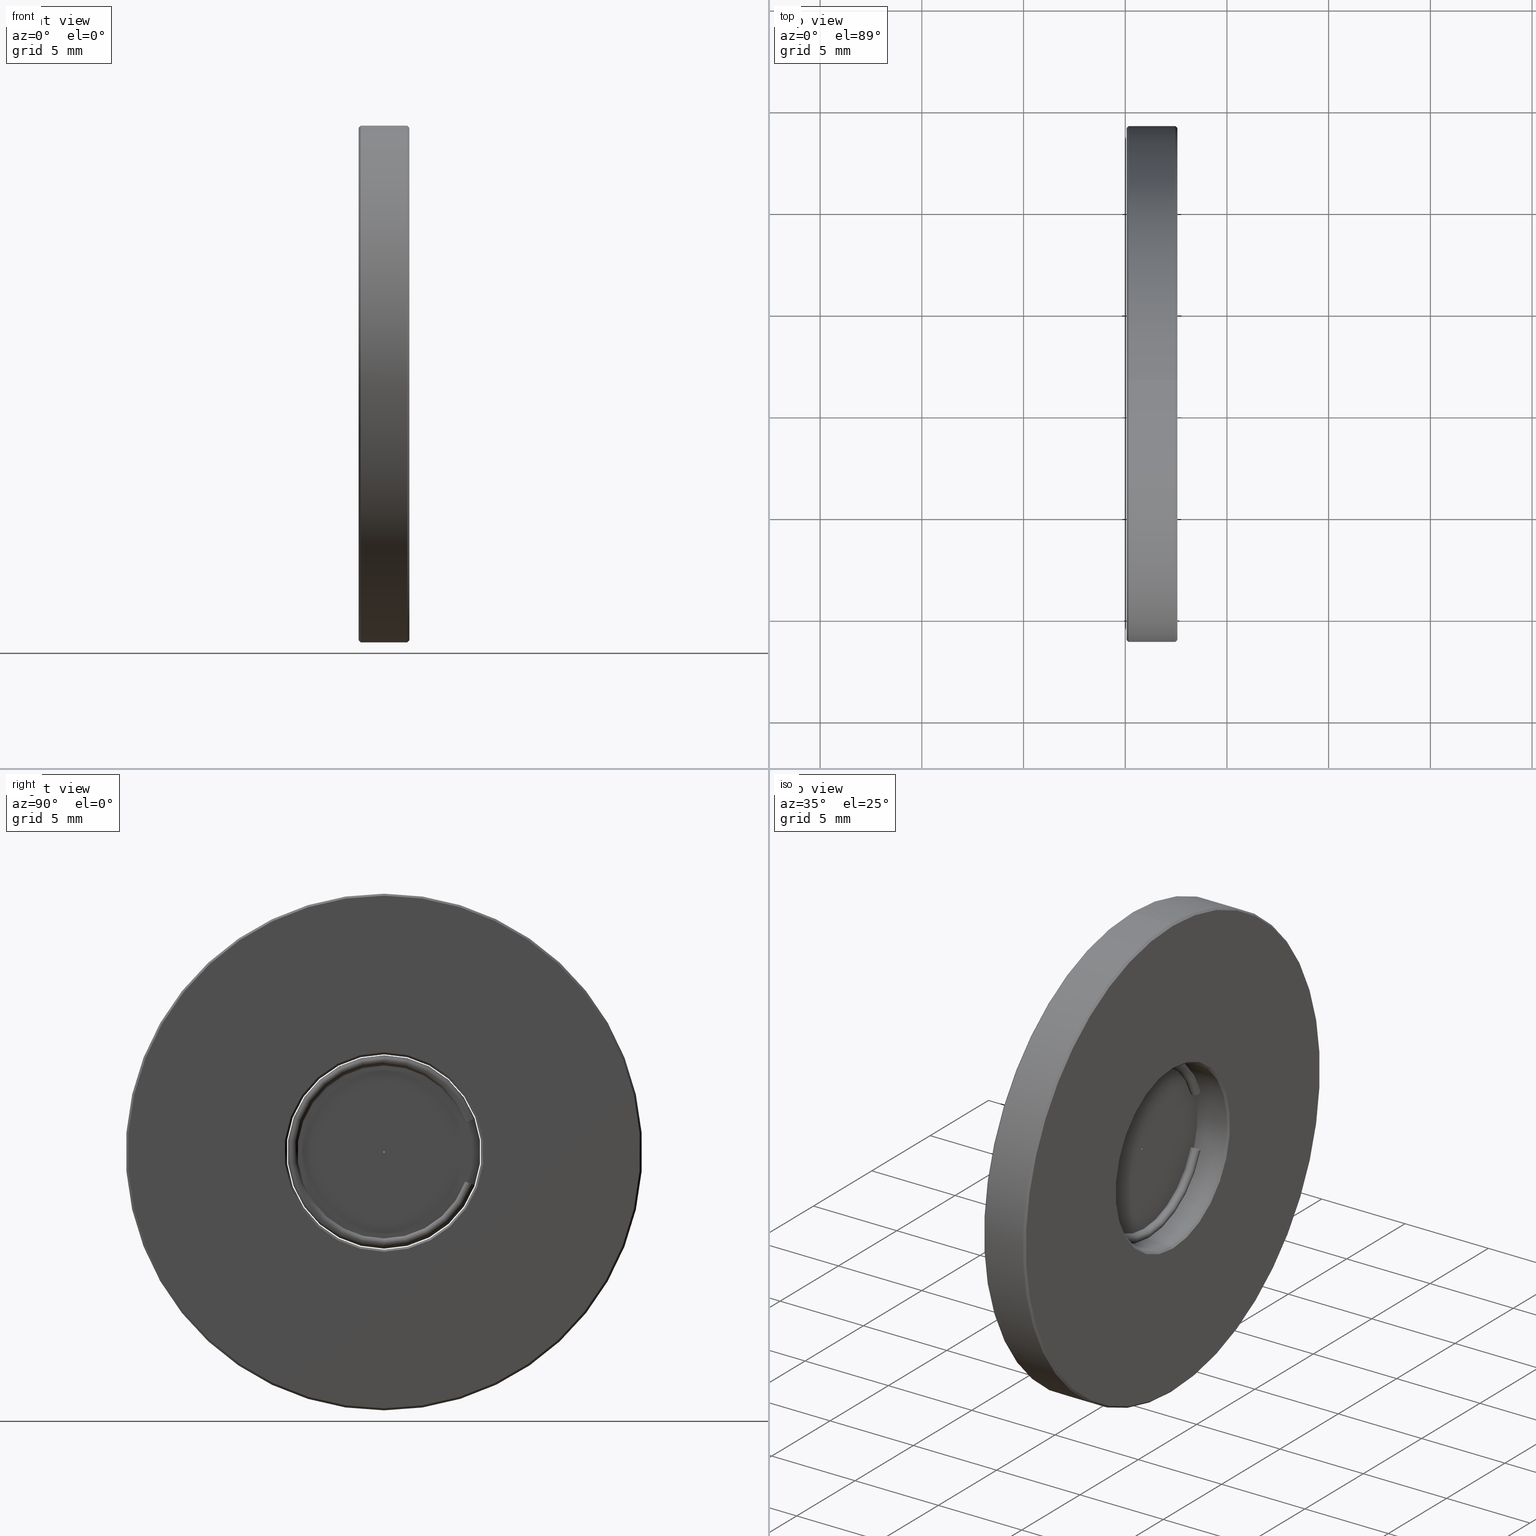
[diagram: canonical four-view strip — front | top / right | iso, engineering-drawing reading convention]
A machine part, canonical four-view strip (front | top / right | iso — engineering-drawing reading convention). The complete STEP part file that produces these views, byte-faithful:
ISO-10303-21;
HEADER;
FILE_DESCRIPTION (( 'STEP AP203' ),
    '1' );
FILE_NAME ('1.5.3.28_ZXO-1.0-50_�������50um��ֱ��25.4��1.0Ӣ�磩.STEP',
    '2021-07-27T01:08:43',
    ( 'China' ),
    ( 'Home' ),
    'SwSTEP 2.0',
    'SolidWorks 2018',
    '' );
FILE_SCHEMA (( 'CONFIG_CONTROL_DESIGN' ));
ENDSEC;

DATA;
#1 = DIRECTION ( 'NONE',  ( 0.0000000000000000000, 0.0000000000000000000, -1.000000000000000000 ) ) ;
#2 = CARTESIAN_POINT ( 'NONE',  ( -4.934863851253203926, 1.436758841085141070, 25.39999999999999858 ) ) ;
#3 = APPROVAL_DATE_TIME ( #503, #4 ) ;
#4 = APPROVAL ( #173, 'δָ��' ) ;
#5 = CARTESIAN_POINT ( 'NONE',  ( -4.034863851253239986, 1.436758841085141514, 25.39999999999998437 ) ) ;
#6 = FACE_OUTER_BOUND ( 'NONE', #369, .T. ) ;
#7 = ORIENTED_EDGE ( 'NONE', *, *, #555, .T. ) ;
#8 = EDGE_LOOP ( 'NONE', ( #38, #417, #614, #415 ) ) ;
#9 = AXIS2_PLACEMENT_3D ( 'NONE', #203, #199, #515 ) ;
#10 = CARTESIAN_POINT ( 'NONE',  ( -4.334863851253203393, 1.436758841085141070, 21.69999999999999574 ) ) ;
#11 = PLANE ( 'NONE',  #191 ) ;
#12 = CARTESIAN_POINT ( 'NONE',  ( -4.334863851253203393, 1.436758841085141070, 25.39999999999999858 ) ) ;
#13 = LINE ( 'NONE', #262, #566 ) ;
#14 = FACE_OUTER_BOUND ( 'NONE', #208, .T. ) ;
#15 = CARTESIAN_POINT ( 'NONE',  ( -2.434863851253203482, 1.436758841085141070, 25.39999999999999858 ) ) ;
#16 = CC_DESIGN_APPROVAL ( #730, ( #109 ) ) ;
#17 = ORIENTED_EDGE ( 'NONE', *, *, #410, .T. ) ;
#18 = CARTESIAN_POINT ( 'NONE',  ( -4.034863851253239986, 1.436758841085141514, 25.39999999999998437 ) ) ;
#19 = ORIENTED_EDGE ( 'NONE', *, *, #225, .F. ) ;
#20 = ORIENTED_EDGE ( 'NONE', *, *, #496, .F. ) ;
#21 = CARTESIAN_POINT ( 'NONE',  ( -4.934863851253203926, 1.436758841085141070, 25.39999999999999858 ) ) ;
#22 = COORDINATED_UNIVERSAL_TIME_OFFSET ( 8, 0, .AHEAD. ) ;
#23 = AXIS2_PLACEMENT_3D ( 'NONE', #541, #722, #424 ) ;
#24 = DIRECTION ( 'NONE',  ( 1.000000000000000000, 0.0000000000000000000, 0.0000000000000000000 ) ) ;
#25 = FACE_OUTER_BOUND ( 'NONE', #184, .T. ) ;
#26 = EDGE_LOOP ( 'NONE', ( #312, #475, #617, #368 ) ) ;
#27 = ADVANCED_FACE ( 'NONE', ( #671 ), #338, .F. ) ;
#28 = VERTEX_POINT ( 'NONE', #10 ) ;
#29 = DIRECTION ( 'NONE',  ( 1.000000000000000000, 0.0000000000000000000, 0.0000000000000000000 ) ) ;
#30 = CARTESIAN_POINT ( 'NONE',  ( -4.934863851253203926, 1.436758841085141070, 25.39999999999999858 ) ) ;
#31 = AXIS2_PLACEMENT_3D ( 'NONE', #18, #575, #694 ) ;
#32 = ADVANCED_FACE ( 'NONE', ( #589 ), #521, .T. ) ;
#33 = LOCAL_TIME ( 9, 8, 43.00000000000000000, #196 ) ;
#34 = SHAPE_DEFINITION_REPRESENTATION ( #399, #768 ) ;
#35 = CIRCLE ( 'NONE', #755, 0.2500000000000002220 ) ;
#36 = CARTESIAN_POINT ( 'NONE',  ( -4.934863851253203926, 1.436758841085141070, 29.19999999999999929 ) ) ;
#37 = EDGE_CURVE ( 'NONE', #582, #106, #385, .T. ) ;
#38 = ORIENTED_EDGE ( 'NONE', *, *, #487, .F. ) ;
#39 = ORIENTED_EDGE ( 'NONE', *, *, #246, .T. ) ;
#40 = DIRECTION ( 'NONE',  ( 1.000000000000000000, 0.0000000000000000000, 0.0000000000000000000 ) ) ;
#41 = DIRECTION ( 'NONE',  ( 0.0000000000000000000, 0.0000000000000000000, -1.000000000000000000 ) ) ;
#42 = DIRECTION ( 'NONE',  ( 1.000000000000000000, -2.997602166487921476E-15, -1.332267629309052594E-15 ) ) ;
#43 = APPROVAL_DATE_TIME ( #651, #367 ) ;
#44 = CARTESIAN_POINT ( 'NONE',  ( -4.034863851253239986, 1.436758841085141514, 25.39999999999998437 ) ) ;
#45 = LINE ( 'NONE', #603, #758 ) ;
#46 = VERTEX_POINT ( 'NONE', #618 ) ;
#47 = EDGE_LOOP ( 'NONE', ( #643, #201, #644, #261 ) ) ;
#48 = APPROVAL_ROLE ( '' ) ;
#49 = CC_DESIGN_PERSON_AND_ORGANIZATION_ASSIGNMENT ( #344, #422, ( #748 ) ) ;
#50 = CARTESIAN_POINT ( 'NONE',  ( -2.434863851253203482, 1.436758841085141070, 38.09999999999999432 ) ) ;
#51 = DIRECTION ( 'NONE',  ( 0.0000000000000000000, 0.0000000000000000000, -1.000000000000000000 ) ) ;
#52 = AXIS2_PLACEMENT_3D ( 'NONE', #214, #652, #642 ) ;
#53 = APPROVAL_ROLE ( '' ) ;
#54 = LINE ( 'NONE', #306, #117 ) ;
#55 = APPROVAL_ROLE ( '' ) ;
#56 = ORIENTED_EDGE ( 'NONE', *, *, #745, .T. ) ;
#57 = PLANE ( 'NONE',  #391 ) ;
#58 = ORIENTED_EDGE ( 'NONE', *, *, #769, .F. ) ;
#59 = ORIENTED_EDGE ( 'NONE', *, *, #333, .F. ) ;
#60 = DIRECTION ( 'NONE',  ( 1.000000000000000000, 0.0000000000000000000, 0.0000000000000000000 ) ) ;
#61 = CARTESIAN_POINT ( 'NONE',  ( -4.934863851253203926, 1.436758841085141514, 29.10000000000000142 ) ) ;
#62 = AXIS2_PLACEMENT_3D ( 'NONE', #426, #612, #125 ) ;
#63 = CALENDAR_DATE ( 2021, 27, 7 ) ;
#64 = DIRECTION ( 'NONE',  ( 1.000000000000000000, -0.0000000000000000000, -0.0000000000000000000 ) ) ;
#65 = FACE_BOUND ( 'NONE', #418, .T. ) ;
#66 = EDGE_LOOP ( 'NONE', ( #561, #792, #259, #793 ) ) ;
#67 = DIRECTION ( 'NONE',  ( 1.000000000000000000, 0.0000000000000000000, 0.0000000000000000000 ) ) ;
#68 = ORIENTED_EDGE ( 'NONE', *, *, #624, .T. ) ;
#69 = AXIS2_PLACEMENT_3D ( 'NONE', #786, #474, #51 ) ;
#70 = DIRECTION ( 'NONE',  ( 3.061276722312011406E-15, 1.000000000000000000, 0.0000000000000000000 ) ) ;
#71 = LOCAL_TIME ( 9, 8, 43.00000000000000000, #151 ) ;
#72 = CIRCLE ( 'NONE', #774, 12.59999999999999787 ) ;
#73 = AXIS2_PLACEMENT_3D ( 'NONE', #646, #413, #404 ) ;
#74 = DIRECTION ( 'NONE',  ( -1.332267629506340790E-15, -6.581527172670668233E-11, -1.000000000000000000 ) ) ;
#75 = OPEN_SHELL ( 'NONE', ( #157, #704, #219, #88, #471, #781, #536, #529 ) ) ;
#76 = CARTESIAN_POINT ( 'NONE',  ( -4.834863851253204281, 1.436758841085141070, 12.69999999999999929 ) ) ;
#77 = ORIENTED_EDGE ( 'NONE', *, *, #420, .F. ) ;
#78 = AXIS2_PLACEMENT_3D ( 'NONE', #148, #388, #695 ) ;
#79 = CARTESIAN_POINT ( 'NONE',  ( -18.51131405003491537, 1.436758841085141070, 25.39999999999999858 ) ) ;
#80 = DIRECTION ( 'NONE',  ( 2.997602166400237614E-15, 1.000000000000000000, -6.581539236536173561E-11 ) ) ;
#81 = DIRECTION ( 'NONE',  ( 0.0000000000000000000, 0.0000000000000000000, -1.000000000000000000 ) ) ;
#82 = CIRCLE ( 'NONE', #679, 3.700000000000001954 ) ;
#83 = VERTEX_POINT ( 'NONE', #330 ) ;
#84 = DIRECTION ( 'NONE',  ( 0.0000000000000000000, 0.0000000000000000000, 1.000000000000000000 ) ) ;
#85 = ORIENTED_EDGE ( 'NONE', *, *, #530, .T. ) ;
#86 = CARTESIAN_POINT ( 'NONE',  ( -2.434863851253203482, 1.436758841085141070, 25.39999999999999858 ) ) ;
#87 = CC_DESIGN_DATE_AND_TIME_ASSIGNMENT ( #659, #231, ( #748 ) ) ;
#88 = ADVANCED_FACE ( 'NONE', ( #509 ), #723, .T. ) ;
#89 = CARTESIAN_POINT ( 'NONE',  ( -4.834863851253204281, 1.436758841085142402, 38.09999999999999432 ) ) ;
#90 = DIRECTION ( 'NONE',  ( 1.000000000000000000, -0.0000000000000000000, -0.0000000000000000000 ) ) ;
#91 = CARTESIAN_POINT ( 'NONE',  ( -4.334863851253204281, 1.436758841085140181, 30.14999999999999858 ) ) ;
#92 = EDGE_CURVE ( 'NONE', #551, #609, #766, .T. ) ;
#93 = VECTOR ( 'NONE', #697, 1000.000000000000000 ) ;
#94 = ORIENTED_EDGE ( 'NONE', *, *, #456, .T. ) ;
#95 = CIRCLE ( 'NONE', #69, 4.899999999999997691 ) ;
#96 = ORIENTED_EDGE ( 'NONE', *, *, #459, .F. ) ;
#97 = DIRECTION ( 'NONE',  ( 2.305737067885825171E-15, -0.3420201433875065256, -0.9396926207634013206 ) ) ;
#98 = DIRECTION ( 'NONE',  ( 2.921639538487253472E-15, 1.000000000000000000, 0.0000000000000000000 ) ) ;
#99 = CARTESIAN_POINT ( 'NONE',  ( -4.834863851253204281, 1.436758841085141070, 25.39999999999999858 ) ) ;
#100 = FACE_BOUND ( 'NONE', #663, .T. ) ;
#101 = DIRECTION ( 'NONE',  ( -1.000000000000000000, -0.0000000000000000000, -0.0000000000000000000 ) ) ;
#102 = AXIS2_PLACEMENT_3D ( 'NONE', #12, #380, #374 ) ;
#103 = EDGE_LOOP ( 'NONE', ( #309, #512, #790, #59 ) ) ;
#104 = CARTESIAN_POINT ( 'NONE',  ( -4.834863851253204281, 1.436758841085141070, 25.39999999999999858 ) ) ;
#105 = VERTEX_POINT ( 'NONE', #568 ) ;
#106 = VERTEX_POINT ( 'NONE', #676 ) ;
#107 = DIRECTION ( 'NONE',  ( 0.0000000000000000000, 0.0000000000000000000, 1.000000000000000000 ) ) ;
#108 = AXIS2_PLACEMENT_3D ( 'NONE', #434, #192, #557 ) ;
#109 = SECURITY_CLASSIFICATION ( '', '', #486 ) ;
#110 = EDGE_CURVE ( 'NONE', #635, #408, #190, .T. ) ;
#111 = DIRECTION ( 'NONE',  ( 1.000000000000000000, 0.0000000000000000000, 0.0000000000000000000 ) ) ;
#112 = ORIENTED_EDGE ( 'NONE', *, *, #305, .F. ) ;
#113 = AXIS2_PLACEMENT_3D ( 'NONE', #79, #263, #81 ) ;
#114 = ORIENTED_EDGE ( 'NONE', *, *, #624, .F. ) ;
#115 = CARTESIAN_POINT ( 'NONE',  ( -4.334863851253204281, 1.436758841085140181, 25.39999999999999858 ) ) ;
#116 = AXIS2_PLACEMENT_3D ( 'NONE', #516, #761, #334 ) ;
#117 = VECTOR ( 'NONE', #731, 1000.000000000000000 ) ;
#118 = CIRCLE ( 'NONE', #217, 3.700000000000001954 ) ;
#119 = CARTESIAN_POINT ( 'NONE',  ( -4.834863851253204281, 1.436758841085141070, 25.39999999999999858 ) ) ;
#120 = ORIENTED_EDGE ( 'NONE', *, *, #138, .F. ) ;
#121 = FACE_OUTER_BOUND ( 'NONE', #443, .T. ) ;
#122 = EDGE_LOOP ( 'NONE', ( #452, #464, #522, #331 ) ) ;
#123 = ORIENTED_EDGE ( 'NONE', *, *, #416, .F. ) ;
#124 = CC_DESIGN_SECURITY_CLASSIFICATION ( #109, ( #128 ) ) ;
#125 = DIRECTION ( 'NONE',  ( 0.0000000000000000000, 0.0000000000000000000, 1.000000000000000000 ) ) ;
#126 = EDGE_CURVE ( 'NONE', #156, #159, #35, .T. ) ;
#127 = CARTESIAN_POINT ( 'NONE',  ( -4.034863851253261302, 5.665375634520459336, 23.86090935475617059 ) ) ;
#128 = PRODUCT_DEFINITION_FORMATION_WITH_SPECIFIED_SOURCE ( '�κ�', '', #628, .NOT_KNOWN. ) ;
#129 = DIRECTION ( 'NONE',  ( 0.7071067811865505703, 8.659560562354895880E-17, 0.7071067811865444641 ) ) ;
#130 = CIRCLE ( 'NONE', #406, 0.2500000000000002220 ) ;
#131 = CIRCLE ( 'NONE', #606, 4.750000000000000888 ) ;
#132 = ORIENTED_EDGE ( 'NONE', *, *, #158, .T. ) ;
#133 = DIRECTION ( 'NONE',  ( 0.0000000000000000000, 0.0000000000000000000, -1.000000000000000000 ) ) ;
#134 = EDGE_LOOP ( 'NONE', ( #546, #441 ) ) ;
#135 = AXIS2_PLACEMENT_3D ( 'NONE', #622, #254, #1 ) ;
#136 = PERSON ( 'δָ��', 'δָ��', 'δָ��', ('δָ��'), ('δָ��'), ('δָ��') ) ;
#137 = DIRECTION ( 'NONE',  ( 1.000000000000000000, 0.0000000000000000000, 0.0000000000000000000 ) ) ;
#138 = EDGE_CURVE ( 'NONE', #83, #105, #233, .T. ) ;
#139 = CARTESIAN_POINT ( 'NONE',  ( -4.934863851253203926, 1.436758841085141070, 25.39999999999999858 ) ) ;
#140 = CARTESIAN_POINT ( 'NONE',  ( -2.434863851253203482, 1.436758841085141070, 20.50000000000000000 ) ) ;
#141 = CYLINDRICAL_SURFACE ( 'NONE', #187, 3.700000000000001954 ) ;
#142 = CONICAL_SURFACE ( 'NONE', #684, 12.59999999999999964, 0.7853981633974569387 ) ;
#143 = CARTESIAN_POINT ( 'NONE',  ( -4.034863851253261302, 5.665375634723053722, 26.93909064468709857 ) ) ;
#144 = EDGE_LOOP ( 'NONE', ( #691, #120, #68, #147 ) ) ;
#145 = VECTOR ( 'NONE', #483, 1000.000000000000000 ) ;
#146 = EDGE_LOOP ( 'NONE', ( #186, #500 ) ) ;
#147 = ORIENTED_EDGE ( 'NONE', *, *, #430, .T. ) ;
#148 = CARTESIAN_POINT ( 'NONE',  ( -2.534863851253202682, 1.436758841085141070, 25.39999999999999858 ) ) ;
#149 = DIRECTION ( 'NONE',  ( -1.000000000000000000, -0.0000000000000000000, -0.0000000000000000000 ) ) ;
#150 = ADVANCED_FACE ( 'NONE', ( #699 ), #375, .T. ) ;
#151 = COORDINATED_UNIVERSAL_TIME_OFFSET ( 8, 0, .AHEAD. ) ;
#152 = EDGE_CURVE ( 'NONE', #403, #524, #425, .T. ) ;
#153 = CIRCLE ( 'NONE', #519, 12.60000000000000142 ) ;
#154 = CARTESIAN_POINT ( 'NONE',  ( -4.034863851253239986, 1.436758841085141514, 25.39999999999998437 ) ) ;
#155 = TOROIDAL_SURFACE ( 'NONE', #285, 4.500000000000001776, 0.2499999999999994726 ) ;
#156 = VERTEX_POINT ( 'NONE', #634 ) ;
#157 = ADVANCED_FACE ( 'NONE', ( #392 ), #560, .T. ) ;
#158 = EDGE_CURVE ( 'NONE', #674, #681, #357, .T. ) ;
#159 = VERTEX_POINT ( 'NONE', #690 ) ;
#160 = AXIS2_PLACEMENT_3D ( 'NONE', #648, #101, #397 ) ;
#161 = DIRECTION ( 'NONE',  ( 2.764278068315865563E-15, -0.9396926207634013206, 0.3420201433875065256 ) ) ;
#162 = DIRECTION ( 'NONE',  ( 0.0000000000000000000, 0.0000000000000000000, 1.000000000000000000 ) ) ;
#163 = CIRCLE ( 'NONE', #73, 4.750000000000000888 ) ;
#164 =( NAMED_UNIT ( * ) SI_UNIT ( $, .STERADIAN. ) SOLID_ANGLE_UNIT ( ) );
#165 = FACE_OUTER_BOUND ( 'NONE', #8, .T. ) ;
#166 = AXIS2_PLACEMENT_3D ( 'NONE', #44, #421, #544 ) ;
#167 = DIRECTION ( 'NONE',  ( -1.000000000000000000, 0.0000000000000000000, 0.0000000000000000000 ) ) ;
#168 = ADVANCED_FACE ( 'NONE', ( #732 ), #712, .F. ) ;
#169 = LINE ( 'NONE', #791, #307 ) ;
#170 = VERTEX_POINT ( 'NONE', #204 ) ;
#171 = CARTESIAN_POINT ( 'NONE',  ( -4.834863851253201616, 1.436758841085141070, 21.69999999999999574 ) ) ;
#172 = ADVANCED_FACE ( 'NONE', ( #65, #25 ), #11, .T. ) ;
#173 = APPROVAL_STATUS ( 'not_yet_approved' ) ;
#174 = COORDINATED_UNIVERSAL_TIME_OFFSET ( 8, 0, .AHEAD. ) ;
#175 = LINE ( 'NONE', #294, #669 ) ;
#176 = FACE_OUTER_BOUND ( 'NONE', #250, .T. ) ;
#177 = DIRECTION ( 'NONE',  ( 2.921639538487253472E-15, 1.000000000000000000, 0.0000000000000000000 ) ) ;
#178 = CARTESIAN_POINT ( 'NONE',  ( -4.034863851253239986, 1.436758841085141514, 25.39999999999998437 ) ) ;
#179 = EDGE_CURVE ( 'NONE', #494, #376, #221, .T. ) ;
#180 = APPROVAL_PERSON_ORGANIZATION ( #685, #730, #48 ) ;
#181 = CYLINDRICAL_SURFACE ( 'NONE', #113, 4.799999999999998934 ) ;
#182 = DIRECTION ( 'NONE',  ( 0.0000000000000000000, 0.0000000000000000000, 1.000000000000000000 ) ) ;
#183 = ORIENTED_EDGE ( 'NONE', *, *, #638, .T. ) ;
#184 = EDGE_LOOP ( 'NONE', ( #727, #495 ) ) ;
#185 = CARTESIAN_POINT ( 'NONE',  ( -4.034863851253234657, 1.436758840788972647, 20.89999999999998437 ) ) ;
#186 = ORIENTED_EDGE ( 'NONE', *, *, #583, .F. ) ;
#187 = AXIS2_PLACEMENT_3D ( 'NONE', #245, #64, #436 ) ;
#188 = CIRCLE ( 'NONE', #526, 0.2500000000000002220 ) ;
#189 = CARTESIAN_POINT ( 'NONE',  ( -4.334863851253204281, 1.436758841085139515, 20.64999999999999858 ) ) ;
#190 = CIRCLE ( 'NONE', #257, 0.2500000000000000000 ) ;
#191 = AXIS2_PLACEMENT_3D ( 'NONE', #447, #454, #445 ) ;
#192 = DIRECTION ( 'NONE',  ( -1.000000000000000000, 0.0000000000000000000, 0.0000000000000000000 ) ) ;
#193 = VERTEX_POINT ( 'NONE', #76 ) ;
#194 = EDGE_CURVE ( 'NONE', #289, #572, #319, .T. ) ;
#195 = CARTESIAN_POINT ( 'NONE',  ( -2.434863851253203482, 1.436758841085142402, 12.79999999999999716 ) ) ;
#196 = COORDINATED_UNIVERSAL_TIME_OFFSET ( 8, 0, .AHEAD. ) ;
#197 = DIRECTION ( 'NONE',  ( 3.469446951953611033E-15, -0.9396926207634005435, 0.3420201433875083574 ) ) ;
#198 = FACE_OUTER_BOUND ( 'NONE', #616, .T. ) ;
#199 = DIRECTION ( 'NONE',  ( 1.000000000000000000, -2.997602166487921476E-15, -1.332267629309052594E-15 ) ) ;
#200 = VERTEX_POINT ( 'NONE', #140 ) ;
#201 = ORIENTED_EDGE ( 'NONE', *, *, #677, .F. ) ;
#202 = AXIS2_PLACEMENT_3D ( 'NONE', #286, #778, #41 ) ;
#203 = CARTESIAN_POINT ( 'NONE',  ( -4.034863851253239986, 1.436758841085141514, 25.39999999999998437 ) ) ;
#204 = CARTESIAN_POINT ( 'NONE',  ( -4.334863851253203393, 1.436758841085141070, 20.60000000000000142 ) ) ;
#205 = DIRECTION ( 'NONE',  ( 0.0000000000000000000, 0.0000000000000000000, 1.000000000000000000 ) ) ;
#206 = PERSON_AND_ORGANIZATION ( #136, #364 ) ;
#207 = DIRECTION ( 'NONE',  ( 0.0000000000000000000, 0.0000000000000000000, 1.000000000000000000 ) ) ;
#208 = EDGE_LOOP ( 'NONE', ( #744, #535, #234, #435 ) ) ;
#209 = ADVANCED_FACE ( 'NONE', ( #543 ), #298, .F. ) ;
#210 = EDGE_CURVE ( 'NONE', #359, #200, #499, .T. ) ;
#211 = VERTEX_POINT ( 'NONE', #647 ) ;
#212 = ORIENTED_EDGE ( 'NONE', *, *, #585, .F. ) ;
#213 = AXIS2_PLACEMENT_3D ( 'NONE', #315, #746, #629 ) ;
#214 = CARTESIAN_POINT ( 'NONE',  ( -4.284863851253205347, 1.436758841085140181, 25.39999999999999858 ) ) ;
#215 = CARTESIAN_POINT ( 'NONE',  ( -4.034863851253246203, 1.436758840772518919, 20.64999999999998437 ) ) ;
#216 = CARTESIAN_POINT ( 'NONE',  ( -4.834863851253201616, 1.436758841085141070, 25.39999999999999858 ) ) ;
#217 = AXIS2_PLACEMENT_3D ( 'NONE', #549, #358, #547 ) ;
#218 = VECTOR ( 'NONE', #556, 1000.000000000000000 ) ;
#219 = ADVANCED_FACE ( 'NONE', ( #176 ), #155, .T. ) ;
#220 = CC_DESIGN_PERSON_AND_ORGANIZATION_ASSIGNMENT ( #788, #610, ( #109 ) ) ;
#221 = CIRCLE ( 'NONE', #620, 12.69999999999999929 ) ;
#222 = DIRECTION ( 'NONE',  ( -1.000000000000000000, -0.0000000000000000000, -0.0000000000000000000 ) ) ;
#223 = ORIENTED_EDGE ( 'NONE', *, *, #429, .F. ) ;
#224 = LINE ( 'NONE', #50, #145 ) ;
#225 = EDGE_CURVE ( 'NONE', #348, #726, #569, .T. ) ;
#226 = ORIENTED_EDGE ( 'NONE', *, *, #37, .T. ) ;
#227 = DIRECTION ( 'NONE',  ( 1.000000000000000000, -0.0000000000000000000, -0.0000000000000000000 ) ) ;
#228 = DIRECTION ( 'NONE',  ( 1.000000000000000000, -0.0000000000000000000, -0.0000000000000000000 ) ) ;
#229 = DIRECTION ( 'NONE',  ( 1.000000000000000000, 0.0000000000000000000, 0.0000000000000000000 ) ) ;
#230 = ADVANCED_FACE ( 'NONE', ( #625 ), #779, .T. ) ;
#231 = DATE_TIME_ROLE ( 'creation_date' ) ;
#232 = AXIS2_PLACEMENT_3D ( 'NONE', #251, #508, #74 ) ;
#233 = CIRCLE ( 'NONE', #395, 0.2500000000000002220 ) ;
#234 = ORIENTED_EDGE ( 'NONE', *, *, #472, .T. ) ;
#235 = APPLICATION_CONTEXT ( 'configuration controlled 3d designs of mechanical parts and assemblies' ) ;
#236 = OPEN_SHELL ( 'NONE', ( #463 ) ) ;
#237 = DESIGN_CONTEXT ( 'detailed design', #235, 'design' ) ;
#238 = DIRECTION ( 'NONE',  ( 2.997602166400237614E-15, 1.000000000000000000, -6.581539236536173561E-11 ) ) ;
#239 = CIRCLE ( 'NONE', #784, 3.800000000000001155 ) ;
#240 = LINE ( 'NONE', #363, #327 ) ;
#241 = AXIS2_PLACEMENT_3D ( 'NONE', #282, #97, #161 ) ;
#242 = VERTEX_POINT ( 'NONE', #270 ) ;
#243 = CARTESIAN_POINT ( 'NONE',  ( -4.034863851253239986, 1.436758841085141514, 25.39999999999998437 ) ) ;
#244 = EDGE_LOOP ( 'NONE', ( #96, #545, #759, #371 ) ) ;
#245 = CARTESIAN_POINT ( 'NONE',  ( -4.934863851253203926, 1.436758841085141070, 25.39999999999999858 ) ) ;
#246 = EDGE_CURVE ( 'NONE', #105, #780, #131, .T. ) ;
#247 = CONICAL_SURFACE ( 'NONE', #665, 3.800000000000001155, 0.7853981633974439491 ) ;
#248 = DIRECTION ( 'NONE',  ( 1.000000000000000000, -0.0000000000000000000, -0.0000000000000000000 ) ) ;
#249 = CIRCLE ( 'NONE', #318, 0.2500000000000002220 ) ;
#250 = EDGE_LOOP ( 'NONE', ( #311, #683, #673, #256 ) ) ;
#251 = CARTESIAN_POINT ( 'NONE',  ( -4.034863851253239986, 1.436758841085141514, 25.39999999999998437 ) ) ;
#252 = ORIENTED_EDGE ( 'NONE', *, *, #769, .T. ) ;
#253 = EDGE_CURVE ( 'NONE', #46, #321, #440, .T. ) ;
#254 = DIRECTION ( 'NONE',  ( 1.000000000000000000, 0.0000000000000000000, 0.0000000000000000000 ) ) ;
#255 = DIRECTION ( 'NONE',  ( 1.000000000000000000, -2.997602166487921476E-15, -1.332267629309052594E-15 ) ) ;
#256 = ORIENTED_EDGE ( 'NONE', *, *, #361, .F. ) ;
#257 = AXIS2_PLACEMENT_3D ( 'NONE', #143, #753, #520 ) ;
#258 = DIRECTION ( 'NONE',  ( 0.0000000000000000000, 0.0000000000000000000, 1.000000000000000000 ) ) ;
#259 = ORIENTED_EDGE ( 'NONE', *, *, #542, .T. ) ;
#260 = FACE_OUTER_BOUND ( 'NONE', #378, .T. ) ;
#261 = ORIENTED_EDGE ( 'NONE', *, *, #210, .F. ) ;
#262 = CARTESIAN_POINT ( 'NONE',  ( -4.834863851253204281, 1.436758841085141070, 12.69999999999999929 ) ) ;
#263 = DIRECTION ( 'NONE',  ( 1.000000000000000000, 0.0000000000000000000, 0.0000000000000000000 ) ) ;
#264 = VECTOR ( 'NONE', #67, 1000.000000000000000 ) ;
#265 = CARTESIAN_POINT ( 'NONE',  ( -4.034863851253245315, 1.436758841381310825, 29.89999999999998437 ) ) ;
#266 = ORIENTED_EDGE ( 'NONE', *, *, #152, .T. ) ;
#267 = ORIENTED_EDGE ( 'NONE', *, *, #687, .T. ) ;
#268 =( GEOMETRIC_REPRESENTATION_CONTEXT ( 3 ) GLOBAL_UNCERTAINTY_ASSIGNED_CONTEXT ( ( #650 ) ) GLOBAL_UNIT_ASSIGNED_CONTEXT ( ( #592, #538, #164 ) ) REPRESENTATION_CONTEXT ( 'NONE', 'WORKASPACE' ) );
#269 = ORIENTED_EDGE ( 'NONE', *, *, #540, .T. ) ;
#270 = CARTESIAN_POINT ( 'NONE',  ( -4.334863851253203393, 1.436758841085141736, 30.19999999999999929 ) ) ;
#271 = AXIS2_PLACEMENT_3D ( 'NONE', #598, #229, #356 ) ;
#272 = DIRECTION ( 'NONE',  ( 1.000000000000000000, -2.997602166487921476E-15, -1.332267629309052594E-15 ) ) ;
#273 = ADVANCED_FACE ( 'NONE', ( #6 ), #433, .F. ) ;
#274 = PRODUCT_RELATED_PRODUCT_CATEGORY ( 'detail', '', ( #628 ) ) ;
#275 = FACE_OUTER_BOUND ( 'NONE', #103, .T. ) ;
#276 = FACE_OUTER_BOUND ( 'NONE', #770, .T. ) ;
#277 = ADVANCED_FACE ( 'NONE', ( #276, #100 ), #534, .T. ) ;
#278 = ORIENTED_EDGE ( 'NONE', *, *, #402, .F. ) ;
#279 = DIRECTION ( 'NONE',  ( 0.0000000000000000000, 0.0000000000000000000, -1.000000000000000000 ) ) ;
#280 = CC_DESIGN_APPROVAL ( #4, ( #748 ) ) ;
#281 = SHELL_BASED_SURFACE_MODEL ( 'NONE', ( #702, #236, #785, #75 ) );
#282 = CARTESIAN_POINT ( 'NONE',  ( -4.034863851253261302, 5.665375634520459336, 23.86090935475617059 ) ) ;
#283 = ADVANCED_FACE ( 'NONE', ( #607, #260 ), #401, .F. ) ;
#284 = APPLICATION_PROTOCOL_DEFINITION ( 'international standard', 'config_control_design', 1994, #653 ) ;
#285 = AXIS2_PLACEMENT_3D ( 'NONE', #154, #341, #340 ) ;
#286 = CARTESIAN_POINT ( 'NONE',  ( -4.334863851253203393, 1.436758841085141070, 25.39999999999999858 ) ) ;
#287 = CARTESIAN_POINT ( 'NONE',  ( -4.034863851253239986, 1.436758841085141514, 25.39999999999998437 ) ) ;
#288 = CIRCLE ( 'NONE', #202, 4.799999999999998934 ) ;
#289 = VERTEX_POINT ( 'NONE', #716 ) ;
#290 = ORIENTED_EDGE ( 'NONE', *, *, #670, .F. ) ;
#291 = PERSON_AND_ORGANIZATION_ROLE ( 'design_owner' ) ;
#292 = CARTESIAN_POINT ( 'NONE',  ( -2.534863851253199574, 1.436758841085141070, 25.39999999999999858 ) ) ;
#293 = APPLICATION_PROTOCOL_DEFINITION ( 'international standard', 'config_control_design', 1994, #235 ) ;
#294 = CARTESIAN_POINT ( 'NONE',  ( -2.434863851253203482, 1.436758841085142402, 12.69999999999999929 ) ) ;
#295 = FACE_OUTER_BOUND ( 'NONE', #134, .T. ) ;
#296 = AXIS2_PLACEMENT_3D ( 'NONE', #346, #773, #600 ) ;
#297 = CARTESIAN_POINT ( 'NONE',  ( -4.034863851253226663, 5.430452479520951670, 26.85358560887114621 ) ) ;
#298 = CONICAL_SURFACE ( 'NONE', #552, 3.800000000000001155, 0.7853981633974439491 ) ;
#299 = MECHANICAL_CONTEXT ( 'NONE', #653, 'mechanical' ) ;
#300 = VERTEX_POINT ( 'NONE', #584 ) ;
#301 = DIRECTION ( 'NONE',  ( -1.332267629506340790E-15, -6.581527172670668233E-11, -1.000000000000000000 ) ) ;
#302 = AXIS2_PLACEMENT_3D ( 'NONE', #178, #42, #177 ) ;
#303 = PERSON_AND_ORGANIZATION_ROLE ( 'design_supplier' ) ;
#304 = DIRECTION ( 'NONE',  ( -1.000000000000000000, 0.0000000000000000000, 0.0000000000000000000 ) ) ;
#305 = EDGE_CURVE ( 'NONE', #572, #289, #492, .T. ) ;
#306 = CARTESIAN_POINT ( 'NONE',  ( -2.434863851253203038, 1.436758841085141070, 20.50000000000000000 ) ) ;
#307 = VECTOR ( 'NONE', #419, 1000.000000000000000 ) ;
#308 = DIRECTION ( 'NONE',  ( 0.0000000000000000000, -6.581540867855999654E-11, -1.000000000000000000 ) ) ;
#309 = ORIENTED_EDGE ( 'NONE', *, *, #402, .T. ) ;
#310 = CIRCLE ( 'NONE', #469, 12.69999999999999929 ) ;
#311 = ORIENTED_EDGE ( 'NONE', *, *, #110, .F. ) ;
#312 = ORIENTED_EDGE ( 'NONE', *, *, #442, .F. ) ;
#313 = DIRECTION ( 'NONE',  ( 0.0000000000000000000, 0.0000000000000000000, -1.000000000000000000 ) ) ;
#314 = CC_DESIGN_PERSON_AND_ORGANIZATION_ASSIGNMENT ( #470, #291, ( #628 ) ) ;
#315 = CARTESIAN_POINT ( 'NONE',  ( -4.934863851253203926, 1.436758841085141070, 25.39999999999999858 ) ) ;
#316 = DIRECTION ( 'NONE',  ( -1.054662389421852547E-17, 0.3420201432638104166, -0.9396926208084229737 ) ) ;
#317 = TOROIDAL_SURFACE ( 'NONE', #232, 4.500000000000001776, 0.2499999999999994726 ) ;
#318 = AXIS2_PLACEMENT_3D ( 'NONE', #372, #238, #799 ) ;
#319 = CIRCLE ( 'NONE', #660, 0.02500000000000071609 ) ;
#320 = CARTESIAN_POINT ( 'NONE',  ( -2.434863851253203482, 1.436758841085141070, 38.00000000000000711 ) ) ;
#321 = VERTEX_POINT ( 'NONE', #347 ) ;
#322 = EDGE_CURVE ( 'NONE', #427, #28, #118, .T. ) ;
#323 = DIRECTION ( 'NONE',  ( 0.0000000000000000000, 0.0000000000000000000, -1.000000000000000000 ) ) ;
#324 = CARTESIAN_POINT ( 'NONE',  ( -4.934863851253203926, 1.436758841085141514, 21.59999999999999787 ) ) ;
#325 = CARTESIAN_POINT ( 'NONE',  ( -4.284863851253205347, 1.436758841085140181, 25.39999999999999858 ) ) ;
#326 = CIRCLE ( 'NONE', #446, 4.750000000000000888 ) ;
#327 = VECTOR ( 'NONE', #802, 1000.000000000000000 ) ;
#328 = CONICAL_SURFACE ( 'NONE', #23, 12.69999999999999929, 0.7853981633974569387 ) ;
#329 = AXIS2_PLACEMENT_3D ( 'NONE', #292, #602, #658 ) ;
#330 = CARTESIAN_POINT ( 'NONE',  ( -4.034863851253237321, 1.436758841364856876, 29.64999999999998437 ) ) ;
#331 = ORIENTED_EDGE ( 'NONE', *, *, #555, .F. ) ;
#332 = DIRECTION ( 'NONE',  ( -1.332267629506340790E-15, -6.581527172670668233E-11, -1.000000000000000000 ) ) ;
#333 = EDGE_CURVE ( 'NONE', #376, #681, #224, .T. ) ;
#334 = DIRECTION ( 'NONE',  ( 0.0000000000000000000, 0.0000000000000000000, -1.000000000000000000 ) ) ;
#335 = FACE_BOUND ( 'NONE', #352, .T. ) ;
#336 = DIRECTION ( 'NONE',  ( 1.000000000000000000, -0.0000000000000000000, -0.0000000000000000000 ) ) ;
#337 = EDGE_CURVE ( 'NONE', #780, #156, #615, .T. ) ;
#338 = CYLINDRICAL_SURFACE ( 'NONE', #135, 4.799999999999998934 ) ;
#339 = ORIENTED_EDGE ( 'NONE', *, *, #472, .F. ) ;
#340 = DIRECTION ( 'NONE',  ( -1.332267629506340790E-15, -6.581527172670668233E-11, -1.000000000000000000 ) ) ;
#341 = DIRECTION ( 'NONE',  ( 1.000000000000000000, -2.997602166487921476E-15, -1.332267629309052594E-15 ) ) ;
#342 = DIRECTION ( 'NONE',  ( 0.0000000000000000000, 0.0000000000000000000, 1.000000000000000000 ) ) ;
#343 = AXIS2_PLACEMENT_3D ( 'NONE', #479, #111, #107 ) ;
#344 = PERSON_AND_ORGANIZATION ( #136, #364 ) ;
#345 = FACE_OUTER_BOUND ( 'NONE', #689, .T. ) ;
#346 = CARTESIAN_POINT ( 'NONE',  ( 0.0000000000000000000, 0.0000000000000000000, 0.0000000000000000000 ) ) ;
#347 = CARTESIAN_POINT ( 'NONE',  ( -4.334863851253204281, 1.436758841085140181, 25.42500000000000071 ) ) ;
#348 = VERTEX_POINT ( 'NONE', #728 ) ;
#349 = EDGE_CURVE ( 'NONE', #681, #193, #310, .T. ) ;
#350 = EDGE_LOOP ( 'NONE', ( #693, #590, #405, #733 ) ) ;
#351 = CIRCLE ( 'NONE', #329, 12.69999999999999929 ) ;
#352 = EDGE_LOOP ( 'NONE', ( #513, #553 ) ) ;
#353 = PLANE ( 'NONE',  #241 ) ;
#354 = AXIS2_PLACEMENT_3D ( 'NONE', #216, #718, #596 ) ;
#355 = DATE_AND_TIME ( #518, #698 ) ;
#356 = DIRECTION ( 'NONE',  ( 0.0000000000000000000, 0.0000000000000000000, 1.000000000000000000 ) ) ;
#357 = LINE ( 'NONE', #636, #93 ) ;
#358 = DIRECTION ( 'NONE',  ( -1.000000000000000000, -0.0000000000000000000, -0.0000000000000000000 ) ) ;
#359 = VERTEX_POINT ( 'NONE', #411 ) ;
#360 = ORIENTED_EDGE ( 'NONE', *, *, #745, .F. ) ;
#361 = EDGE_CURVE ( 'NONE', #408, #83, #451, .T. ) ;
#362 = DATE_TIME_ROLE ( 'classification_date' ) ;
#363 = CARTESIAN_POINT ( 'NONE',  ( -2.434863851253203482, 1.436758841085141070, 38.00000000000000000 ) ) ;
#364 = ORGANIZATION ( 'δָ��', 'δָ��', '' ) ;
#365 = APPROVAL_STATUS ( 'not_yet_approved' ) ;
#366 = TOROIDAL_SURFACE ( 'NONE', #31, 4.500000000000001776, 0.2499999999999994726 ) ;
#367 = APPROVAL ( #657, 'δָ��' ) ;
#368 = ORIENTED_EDGE ( 'NONE', *, *, #349, .T. ) ;
#369 = EDGE_LOOP ( 'NONE', ( #393, #801, #511, #20 ) ) ;
#370 = CARTESIAN_POINT ( 'NONE',  ( -4.034863851253261302, 5.665375634723053722, 26.93909064468709857 ) ) ;
#371 = ORIENTED_EDGE ( 'NONE', *, *, #772, .F. ) ;
#372 = CARTESIAN_POINT ( 'NONE',  ( -4.034863851253245315, 1.436758841381310825, 29.89999999999998437 ) ) ;
#373 = EDGE_CURVE ( 'NONE', #242, #170, #288, .T. ) ;
#374 = DIRECTION ( 'NONE',  ( 0.0000000000000000000, 0.0000000000000000000, -1.000000000000000000 ) ) ;
#375 = CYLINDRICAL_SURFACE ( 'NONE', #504, 12.69999999999999574 ) ;
#376 = VERTEX_POINT ( 'NONE', #656 ) ;
#377 = EDGE_CURVE ( 'NONE', #760, #655, #734, .T. ) ;
#378 = EDGE_LOOP ( 'NONE', ( #85, #252 ) ) ;
#379 = CARTESIAN_POINT ( 'NONE',  ( -4.034863851253261302, 5.665375634723053722, 26.93909064468709857 ) ) ;
#380 = DIRECTION ( 'NONE',  ( 1.000000000000000000, 0.0000000000000000000, 0.0000000000000000000 ) ) ;
#381 = DIRECTION ( 'NONE',  ( 3.469446951953614189E-15, -0.9396926208084209753, -0.3420201432638159122 ) ) ;
#382 = CIRCLE ( 'NONE', #794, 12.59999999999999787 ) ;
#383 = AXIS2_PLACEMENT_3D ( 'NONE', #528, #29, #467 ) ;
#384 = CARTESIAN_POINT ( 'NONE',  ( -4.034863851253261302, 5.665375634520459336, 23.86090935475617059 ) ) ;
#385 = CIRCLE ( 'NONE', #78, 4.799999999999998934 ) ;
#386 = CARTESIAN_POINT ( 'NONE',  ( -18.51131405003491537, 1.436758841085141070, 20.60000000000000142 ) ) ;
#387 = EDGE_LOOP ( 'NONE', ( #183, #7 ) ) ;
#388 = DIRECTION ( 'NONE',  ( 1.000000000000000000, -0.0000000000000000000, -0.0000000000000000000 ) ) ;
#389 = LOCAL_TIME ( 9, 8, 43.00000000000000000, #22 ) ;
#390 = DIRECTION ( 'NONE',  ( 0.0000000000000000000, 0.0000000000000000000, -1.000000000000000000 ) ) ;
#391 = AXIS2_PLACEMENT_3D ( 'NONE', #370, #316, #619 ) ;
#392 = FACE_OUTER_BOUND ( 'NONE', #244, .T. ) ;
#393 = ORIENTED_EDGE ( 'NONE', *, *, #37, .F. ) ;
#394 = ADVANCED_FACE ( 'NONE', ( #121 ), #328, .T. ) ;
#395 = AXIS2_PLACEMENT_3D ( 'NONE', #265, #80, #577 ) ;
#396 = CARTESIAN_POINT ( 'NONE',  ( -2.434863851253203038, 1.436758841085141070, 25.39999999999999858 ) ) ;
#397 = DIRECTION ( 'NONE',  ( 0.0000000000000000000, 0.0000000000000000000, -1.000000000000000000 ) ) ;
#398 = PERSON_AND_ORGANIZATION ( #136, #364 ) ;
#399 = PRODUCT_DEFINITION_SHAPE ( 'NONE', 'NONE',  #748 ) ;
#400 = CYLINDRICAL_SURFACE ( 'NONE', #738, 3.700000000000001954 ) ;
#401 = PLANE ( 'NONE',  #383 ) ;
#402 = EDGE_CURVE ( 'NONE', #376, #494, #351, .T. ) ;
#403 = VERTEX_POINT ( 'NONE', #414 ) ;
#404 = DIRECTION ( 'NONE',  ( 2.921639538487253472E-15, 1.000000000000000000, 0.0000000000000000000 ) ) ;
#405 = ORIENTED_EDGE ( 'NONE', *, *, #361, .T. ) ;
#406 = AXIS2_PLACEMENT_3D ( 'NONE', #127, #571, #197 ) ;
#407 = CARTESIAN_POINT ( 'NONE',  ( -2.534863851253199574, 1.436758841085141070, 25.39999999999999858 ) ) ;
#408 = VERTEX_POINT ( 'NONE', #297 ) ;
#409 = DIRECTION ( 'NONE',  ( -0.7071067811865506814, 0.0000000000000000000, 0.7071067811865443531 ) ) ;
#410 = EDGE_CURVE ( 'NONE', #200, #359, #95, .T. ) ;
#411 = CARTESIAN_POINT ( 'NONE',  ( -2.434863851253203482, 1.436758841085141736, 30.29999999999999716 ) ) ;
#412 = LINE ( 'NONE', #386, #264 ) ;
#413 = DIRECTION ( 'NONE',  ( 1.000000000000000000, -2.997602166487921476E-15, -1.332267629309052594E-15 ) ) ;
#414 = CARTESIAN_POINT ( 'NONE',  ( -4.284863851253205347, 1.436758841085140181, 30.14999999999999858 ) ) ;
#415 = ORIENTED_EDGE ( 'NONE', *, *, #322, .F. ) ;
#416 = EDGE_CURVE ( 'NONE', #749, #28, #169, .T. ) ;
#417 = ORIENTED_EDGE ( 'NONE', *, *, #735, .T. ) ;
#418 = EDGE_LOOP ( 'NONE', ( #17, #455 ) ) ;
#419 = DIRECTION ( 'NONE',  ( 1.000000000000000000, -0.0000000000000000000, -0.0000000000000000000 ) ) ;
#420 = EDGE_CURVE ( 'NONE', #242, #582, #45, .T. ) ;
#421 = DIRECTION ( 'NONE',  ( 1.000000000000000000, -2.997602166487921476E-15, -1.332267629309052594E-15 ) ) ;
#422 = PERSON_AND_ORGANIZATION_ROLE ( 'creator' ) ;
#423 = AXIS2_PLACEMENT_3D ( 'NONE', #243, #493, #301 ) ;
#424 = DIRECTION ( 'NONE',  ( 0.0000000000000000000, 0.0000000000000000000, -1.000000000000000000 ) ) ;
#425 = CIRCLE ( 'NONE', #437, 4.750000000000000888 ) ;
#426 = CARTESIAN_POINT ( 'NONE',  ( -4.334863851253204281, 1.436758841085140181, 25.39999999999999858 ) ) ;
#427 = VERTEX_POINT ( 'NONE', #725 ) ;
#428 = ORIENTED_EDGE ( 'NONE', *, *, #724, .F. ) ;
#429 = EDGE_CURVE ( 'NONE', #105, #83, #249, .T. ) ;
#430 = EDGE_CURVE ( 'NONE', #465, #780, #188, .T. ) ;
#431 = CIRCLE ( 'NONE', #480, 12.69999999999999929 ) ;
#432 = TOROIDAL_SURFACE ( 'NONE', #423, 4.500000000000001776, 0.2499999999999994726 ) ;
#433 = CONICAL_SURFACE ( 'NONE', #630, 4.899999999999997691, 0.7853981633974439491 ) ;
#434 = CARTESIAN_POINT ( 'NONE',  ( -2.434863851253203482, 1.436758841085141070, 25.39999999999999858 ) ) ;
#435 = ORIENTED_EDGE ( 'NONE', *, *, #179, .F. ) ;
#436 = DIRECTION ( 'NONE',  ( 0.0000000000000000000, 0.0000000000000000000, -1.000000000000000000 ) ) ;
#437 = AXIS2_PLACEMENT_3D ( 'NONE', #325, #137, #258 ) ;
#438 = FACE_OUTER_BOUND ( 'NONE', #122, .T. ) ;
#439 = CARTESIAN_POINT ( 'NONE',  ( -4.034863851253225775, 5.900298789925161103, 27.02459568050305094 ) ) ;
#440 = CIRCLE ( 'NONE', #797, 0.02500000000000071609 ) ;
#441 = ORIENTED_EDGE ( 'NONE', *, *, #110, .T. ) ;
#442 = EDGE_CURVE ( 'NONE', #494, #193, #175, .T. ) ;
#443 = EDGE_LOOP ( 'NONE', ( #58, #132, #645, #554 ) ) ;
#444 = DIRECTION ( 'NONE',  ( 0.7071067811865414665, 0.0000000000000000000, -0.7071067811865536790 ) ) ;
#445 = DIRECTION ( 'NONE',  ( 0.0000000000000000000, 0.0000000000000000000, -1.000000000000000000 ) ) ;
#446 = AXIS2_PLACEMENT_3D ( 'NONE', #767, #40, #473 ) ;
#447 = CARTESIAN_POINT ( 'NONE',  ( -2.434863851253203482, 1.436758841085141070, 25.39999999999999858 ) ) ;
#448 = DIRECTION ( 'NONE',  ( -1.000000000000000000, -0.0000000000000000000, -0.0000000000000000000 ) ) ;
#449 = CIRCLE ( 'NONE', #213, 3.800000000000001155 ) ;
#450 = DIRECTION ( 'NONE',  ( 1.000000000000000000, -0.0000000000000000000, -0.0000000000000000000 ) ) ;
#451 = CIRCLE ( 'NONE', #166, 4.250000000000001776 ) ;
#452 = ORIENTED_EDGE ( 'NONE', *, *, #540, .F. ) ;
#453 = ORIENTED_EDGE ( 'NONE', *, *, #459, .T. ) ;
#454 = DIRECTION ( 'NONE',  ( 1.000000000000000000, 0.0000000000000000000, 0.0000000000000000000 ) ) ;
#455 = ORIENTED_EDGE ( 'NONE', *, *, #210, .T. ) ;
#456 = EDGE_CURVE ( 'NONE', #609, #494, #507, .T. ) ;
#457 = DIRECTION ( 'NONE',  ( 0.0000000000000000000, 0.0000000000000000000, -1.000000000000000000 ) ) ;
#458 = CC_DESIGN_DATE_AND_TIME_ASSIGNMENT ( #355, #362, ( #109 ) ) ;
#459 = EDGE_CURVE ( 'NONE', #780, #465, #641, .T. ) ;
#460 = DIRECTION ( 'NONE',  ( 1.000000000000000000, -0.0000000000000000000, -0.0000000000000000000 ) ) ;
#461 = AXIS2_PLACEMENT_3D ( 'NONE', #287, #783, #532 ) ;
#462 = VECTOR ( 'NONE', #409, 1000.000000000000114 ) ;
#463 = ADVANCED_FACE ( 'NONE', ( #740, #335 ), #742, .F. ) ;
#464 = ORIENTED_EDGE ( 'NONE', *, *, #735, .F. ) ;
#465 = VERTEX_POINT ( 'NONE', #668 ) ;
#466 = CARTESIAN_POINT ( 'NONE',  ( -2.434863851253203482, 1.436758841085141070, 25.39999999999999858 ) ) ;
#467 = DIRECTION ( 'NONE',  ( 0.0000000000000000000, 0.0000000000000000000, -1.000000000000000000 ) ) ;
#468 = ADVANCED_FACE ( 'NONE', ( #14 ), #142, .T. ) ;
#469 = AXIS2_PLACEMENT_3D ( 'NONE', #104, #227, #654 ) ;
#470 = PERSON_AND_ORGANIZATION ( #136, #364 ) ;
#471 = ADVANCED_FACE ( 'NONE', ( #597 ), #432, .T. ) ;
#472 = EDGE_CURVE ( 'NONE', #551, #376, #240, .T. ) ;
#473 = DIRECTION ( 'NONE',  ( 0.0000000000000000000, 0.0000000000000000000, 1.000000000000000000 ) ) ;
#474 = DIRECTION ( 'NONE',  ( -1.000000000000000000, -0.0000000000000000000, -0.0000000000000000000 ) ) ;
#475 = ORIENTED_EDGE ( 'NONE', *, *, #179, .T. ) ;
#476 = ORIENTED_EDGE ( 'NONE', *, *, #487, .T. ) ;
#477 = ADVANCED_FACE ( 'NONE', ( #165 ), #141, .F. ) ;
#478 = EDGE_CURVE ( 'NONE', #321, #46, #579, .T. ) ;
#479 = CARTESIAN_POINT ( 'NONE',  ( -4.284863851253205347, 1.436758841085140181, 25.39999999999999858 ) ) ;
#480 = AXIS2_PLACEMENT_3D ( 'NONE', #119, #248, #313 ) ;
#481 = LOCAL_TIME ( 9, 8, 43.00000000000000000, #174 ) ;
#482 = CIRCLE ( 'NONE', #461, 4.250000000000001776 ) ;
#483 = DIRECTION ( 'NONE',  ( -1.000000000000000000, -0.0000000000000000000, -0.0000000000000000000 ) ) ;
#484 = EDGE_LOOP ( 'NONE', ( #626, #750, #226, #591 ) ) ;
#485 = AXIS2_PLACEMENT_3D ( 'NONE', #99, #90, #539 ) ;
#486 = SECURITY_CLASSIFICATION_LEVEL ( 'unclassified' ) ;
#487 = EDGE_CURVE ( 'NONE', #348, #427, #558, .T. ) ;
#488 = DIRECTION ( 'NONE',  ( -0.7071067811865414665, 8.659560562355008046E-17, -0.7071067811865536790 ) ) ;
#489 = AXIS2_PLACEMENT_3D ( 'NONE', #379, #751, #381 ) ;
#490 = DATE_AND_TIME ( #667, #481 ) ;
#491 = VECTOR ( 'NONE', #754, 1000.000000000000114 ) ;
#492 = CIRCLE ( 'NONE', #343, 0.02500000000000071609 ) ;
#493 = DIRECTION ( 'NONE',  ( 1.000000000000000000, -2.997602166487921476E-15, -1.332267629309052594E-15 ) ) ;
#494 = VERTEX_POINT ( 'NONE', #611 ) ;
#495 = ORIENTED_EDGE ( 'NONE', *, *, #670, .T. ) ;
#496 = EDGE_CURVE ( 'NONE', #106, #200, #54, .T. ) ;
#497 = AXIS2_PLACEMENT_3D ( 'NONE', #580, #631, #332 ) ;
#498 = APPROVAL_PERSON_ORGANIZATION ( #796, #367, #55 ) ;
#499 = CIRCLE ( 'NONE', #787, 4.899999999999997691 ) ;
#500 = ORIENTED_EDGE ( 'NONE', *, *, #126, .F. ) ;
#501 = DIRECTION ( 'NONE',  ( 1.000000000000000000, 0.0000000000000000000, 0.0000000000000000000 ) ) ;
#502 = CARTESIAN_POINT ( 'NONE',  ( -2.534863851253202682, 1.436758841085141736, 30.19999999999999929 ) ) ;
#503 = DATE_AND_TIME ( #604, #389 ) ;
#504 = AXIS2_PLACEMENT_3D ( 'NONE', #15, #149, #205 ) ;
#505 = DIRECTION ( 'NONE',  ( 2.305737067885818465E-15, -0.3420201433875043051, -0.9396926207634020978 ) ) ;
#506 = CYLINDRICAL_SURFACE ( 'NONE', #574, 12.69999999999999574 ) ;
#507 = LINE ( 'NONE', #666, #567 ) ;
#508 = DIRECTION ( 'NONE',  ( 1.000000000000000000, -2.997602166487921476E-15, -1.332267629309052594E-15 ) ) ;
#509 = FACE_OUTER_BOUND ( 'NONE', #350, .T. ) ;
#510 = CARTESIAN_POINT ( 'NONE',  ( -4.934863851253203926, 1.436758841085141070, 25.39999999999999858 ) ) ;
#511 = ORIENTED_EDGE ( 'NONE', *, *, #410, .F. ) ;
#512 = ORIENTED_EDGE ( 'NONE', *, *, #442, .T. ) ;
#513 = ORIENTED_EDGE ( 'NONE', *, *, #478, .T. ) ;
#514 = DIRECTION ( 'NONE',  ( 1.000000000000000000, 0.0000000000000000000, 0.0000000000000000000 ) ) ;
#515 = DIRECTION ( 'NONE',  ( -1.332267629506340790E-15, -6.581527172670668233E-11, -1.000000000000000000 ) ) ;
#516 = CARTESIAN_POINT ( 'NONE',  ( -2.434863851253203482, 1.436758841085141070, 25.39999999999999858 ) ) ;
#517 = EDGE_CURVE ( 'NONE', #193, #681, #431, .T. ) ;
#518 = CALENDAR_DATE ( 2021, 27, 7 ) ;
#519 = AXIS2_PLACEMENT_3D ( 'NONE', #86, #514, #390 ) ;
#520 = DIRECTION ( 'NONE',  ( 3.469446951953614189E-15, -0.9396926208084209753, -0.3420201432638159122 ) ) ;
#521 = CONICAL_SURFACE ( 'NONE', #108, 12.59999999999999964, 0.7853981633974569387 ) ;
#522 = ORIENTED_EDGE ( 'NONE', *, *, #225, .T. ) ;
#523 = DIRECTION ( 'NONE',  ( -1.000000000000000000, -0.0000000000000000000, -0.0000000000000000000 ) ) ;
#524 = VERTEX_POINT ( 'NONE', #795 ) ;
#525 = CARTESIAN_POINT ( 'NONE',  ( -4.284863851253205347, 1.436758841085140181, 25.39999999999999858 ) ) ;
#526 = AXIS2_PLACEMENT_3D ( 'NONE', #185, #675, #308 ) ;
#527 = DIRECTION ( 'NONE',  ( 0.0000000000000000000, 0.0000000000000000000, -1.000000000000000000 ) ) ;
#528 = CARTESIAN_POINT ( 'NONE',  ( -4.934863851253203926, 1.436758841085141070, 25.39999999999999858 ) ) ;
#529 = ADVANCED_FACE ( 'NONE', ( #295 ), #57, .T. ) ;
#530 = EDGE_CURVE ( 'NONE', #211, #674, #382, .T. ) ;
#531 = CIRCLE ( 'NONE', #533, 4.250000000000001776 ) ;
#532 = DIRECTION ( 'NONE',  ( 3.061276722312011406E-15, 1.000000000000000000, 0.0000000000000000000 ) ) ;
#533 = AXIS2_PLACEMENT_3D ( 'NONE', #5, #255, #70 ) ;
#534 = PLANE ( 'NONE',  #52 ) ;
#535 = ORIENTED_EDGE ( 'NONE', *, *, #92, .F. ) ;
#536 = ADVANCED_FACE ( 'NONE', ( #578 ), #317, .T. ) ;
#537 = EDGE_LOOP ( 'NONE', ( #680, #428 ) ) ;
#538 =( NAMED_UNIT ( * ) PLANE_ANGLE_UNIT ( ) SI_UNIT ( $, .RADIAN. ) );
#539 = DIRECTION ( 'NONE',  ( 0.0000000000000000000, 0.0000000000000000000, -1.000000000000000000 ) ) ;
#540 = EDGE_CURVE ( 'NONE', #749, #300, #587, .T. ) ;
#541 = CARTESIAN_POINT ( 'NONE',  ( -4.834863851253204281, 1.436758841085141070, 25.39999999999999858 ) ) ;
#542 = EDGE_CURVE ( 'NONE', #211, #193, #13, .T. ) ;
#543 = FACE_OUTER_BOUND ( 'NONE', #743, .T. ) ;
#544 = DIRECTION ( 'NONE',  ( 3.061276722312011406E-15, 1.000000000000000000, 0.0000000000000000000 ) ) ;
#545 = ORIENTED_EDGE ( 'NONE', *, *, #337, .T. ) ;
#546 = ORIENTED_EDGE ( 'NONE', *, *, #593, .T. ) ;
#547 = DIRECTION ( 'NONE',  ( 0.0000000000000000000, 0.0000000000000000000, -1.000000000000000000 ) ) ;
#548 = AXIS2_PLACEMENT_3D ( 'NONE', #706, #460, #700 ) ;
#549 = CARTESIAN_POINT ( 'NONE',  ( -4.334863851253203393, 1.436758841085141070, 25.39999999999999858 ) ) ;
#550 = DIRECTION ( 'NONE',  ( 0.0000000000000000000, 0.0000000000000000000, 1.000000000000000000 ) ) ;
#551 = VERTEX_POINT ( 'NONE', #320 ) ;
#552 = AXIS2_PLACEMENT_3D ( 'NONE', #510, #756, #162 ) ;
#553 = ORIENTED_EDGE ( 'NONE', *, *, #253, .T. ) ;
#554 = ORIENTED_EDGE ( 'NONE', *, *, #542, .F. ) ;
#555 = EDGE_CURVE ( 'NONE', #300, #726, #239, .T. ) ;
#556 = DIRECTION ( 'NONE',  ( 1.000000000000000000, -0.0000000000000000000, -0.0000000000000000000 ) ) ;
#557 = DIRECTION ( 'NONE',  ( 0.0000000000000000000, 0.0000000000000000000, 1.000000000000000000 ) ) ;
#558 = LINE ( 'NONE', #61, #218 ) ;
#559 = DIRECTION ( 'NONE',  ( -1.000000000000000000, -0.0000000000000000000, -0.0000000000000000000 ) ) ;
#560 = TOROIDAL_SURFACE ( 'NONE', #9, 4.500000000000001776, 0.2499999999999994726 ) ;
#561 = ORIENTED_EDGE ( 'NONE', *, *, #158, .F. ) ;
#562 = AXIS2_PLACEMENT_3D ( 'NONE', #525, #576, #207 ) ;
#563 = CARTESIAN_POINT ( 'NONE',  ( -4.934863851253203926, 1.436758841085142402, 38.00000000000000000 ) ) ;
#564 = AXIS2_PLACEMENT_3D ( 'NONE', #608, #737, #672 ) ;
#565 = APPROVAL_PERSON_ORGANIZATION ( #206, #4, #53 ) ;
#566 = VECTOR ( 'NONE', #444, 1000.000000000000000 ) ;
#567 = VECTOR ( 'NONE', #488, 1000.000000000000000 ) ;
#568 = CARTESIAN_POINT ( 'NONE',  ( -4.034863851253234657, 1.436758841397764552, 30.14999999999998437 ) ) ;
#569 = LINE ( 'NONE', #703, #462 ) ;
#570 = ORIENTED_EDGE ( 'NONE', *, *, #677, .T. ) ;
#571 = DIRECTION ( 'NONE',  ( 2.305737067885818465E-15, -0.3420201433875043051, -0.9396926207634020978 ) ) ;
#572 = VERTEX_POINT ( 'NONE', #621 ) ;
#573 = DIRECTION ( 'NONE',  ( 3.469446951953611033E-15, -0.9396926207634005435, 0.3420201433875083574 ) ) ;
#574 = AXIS2_PLACEMENT_3D ( 'NONE', #466, #222, #342 ) ;
#575 = DIRECTION ( 'NONE',  ( 1.000000000000000000, -2.997602166487921476E-15, -1.332267629309052594E-15 ) ) ;
#576 = DIRECTION ( 'NONE',  ( 1.000000000000000000, 0.0000000000000000000, 0.0000000000000000000 ) ) ;
#577 = DIRECTION ( 'NONE',  ( 0.0000000000000000000, 6.581540867855999654E-11, 1.000000000000000000 ) ) ;
#578 = FACE_OUTER_BOUND ( 'NONE', #736, .T. ) ;
#579 = CIRCLE ( 'NONE', #741, 0.02500000000000071609 ) ;
#580 = CARTESIAN_POINT ( 'NONE',  ( -4.034863851253239986, 1.436758841085141514, 25.39999999999998437 ) ) ;
#581 = ORIENTED_EDGE ( 'NONE', *, *, #638, .F. ) ;
#582 = VERTEX_POINT ( 'NONE', #502 ) ;
#583 = EDGE_CURVE ( 'NONE', #159, #156, #130, .T. ) ;
#584 = CARTESIAN_POINT ( 'NONE',  ( -4.934863851253203926, 1.436758841085141514, 21.59999999999999787 ) ) ;
#585 = EDGE_CURVE ( 'NONE', #170, #242, #763, .T. ) ;
#586 = CARTESIAN_POINT ( 'NONE',  ( -4.934863851253203926, 1.436758841085141070, 25.39999999999999858 ) ) ;
#587 = LINE ( 'NONE', #324, #491 ) ;
#588 = DIRECTION ( 'NONE',  ( 0.0000000000000000000, 0.0000000000000000000, 1.000000000000000000 ) ) ;
#589 = FACE_OUTER_BOUND ( 'NONE', #627, .T. ) ;
#590 = ORIENTED_EDGE ( 'NONE', *, *, #593, .F. ) ;
#591 = ORIENTED_EDGE ( 'NONE', *, *, #601, .F. ) ;
#592 =( LENGTH_UNIT ( ) NAMED_UNIT ( * ) SI_UNIT ( .MILLI., .METRE. ) );
#593 = EDGE_CURVE ( 'NONE', #408, #635, #605, .T. ) ;
#594 = DIRECTION ( 'NONE',  ( 0.0000000000000000000, 0.0000000000000000000, -1.000000000000000000 ) ) ;
#595 = DIRECTION ( 'NONE',  ( 0.0000000000000000000, 0.0000000000000000000, -1.000000000000000000 ) ) ;
#596 = DIRECTION ( 'NONE',  ( 0.0000000000000000000, 0.0000000000000000000, -1.000000000000000000 ) ) ;
#597 = FACE_OUTER_BOUND ( 'NONE', #144, .T. ) ;
#598 = CARTESIAN_POINT ( 'NONE',  ( -4.334863851253204281, 1.436758841085140181, 25.39999999999999858 ) ) ;
#599 = EDGE_LOOP ( 'NONE', ( #77, #212, #664, #570 ) ) ;
#600 = DIRECTION ( 'NONE',  ( 1.000000000000000000, 0.0000000000000000000, 0.0000000000000000000 ) ) ;
#601 = EDGE_CURVE ( 'NONE', #170, #106, #412, .T. ) ;
#602 = DIRECTION ( 'NONE',  ( -1.000000000000000000, 0.0000000000000000000, 0.0000000000000000000 ) ) ;
#603 = CARTESIAN_POINT ( 'NONE',  ( -18.51131405003491537, 1.436758841085141736, 30.19999999999999929 ) ) ;
#604 = CALENDAR_DATE ( 2021, 27, 7 ) ;
#605 = CIRCLE ( 'NONE', #489, 0.2500000000000000000 ) ;
#606 = AXIS2_PLACEMENT_3D ( 'NONE', #711, #272, #98 ) ;
#607 = FACE_BOUND ( 'NONE', #387, .T. ) ;
#608 = CARTESIAN_POINT ( 'NONE',  ( -4.034863851253234657, 1.436758840788972647, 20.89999999999998437 ) ) ;
#609 = VERTEX_POINT ( 'NONE', #195 ) ;
#610 = PERSON_AND_ORGANIZATION_ROLE ( 'classification_officer' ) ;
#611 = CARTESIAN_POINT ( 'NONE',  ( -2.534863851253199574, 1.436758841085142402, 12.69999999999999929 ) ) ;
#612 = DIRECTION ( 'NONE',  ( 1.000000000000000000, 0.0000000000000000000, -0.0000000000000000000 ) ) ;
#613 = LINE ( 'NONE', #682, #777 ) ;
#614 = ORIENTED_EDGE ( 'NONE', *, *, #416, .T. ) ;
#615 = CIRCLE ( 'NONE', #302, 4.750000000000000888 ) ;
#616 = EDGE_LOOP ( 'NONE', ( #56, #476, #800, #123 ) ) ;
#617 = ORIENTED_EDGE ( 'NONE', *, *, #333, .T. ) ;
#618 = CARTESIAN_POINT ( 'NONE',  ( -4.334863851253204281, 1.436758841085140181, 25.37500000000000000 ) ) ;
#619 = DIRECTION ( 'NONE',  ( 3.599659071901011181E-15, -0.9396926208084229737, -0.3420201432638104166 ) ) ;
#620 = AXIS2_PLACEMENT_3D ( 'NONE', #407, #167, #762 ) ;
#621 = CARTESIAN_POINT ( 'NONE',  ( -4.284863851253205347, 1.436758841085140181, 25.42500000000000071 ) ) ;
#622 = CARTESIAN_POINT ( 'NONE',  ( -18.51131405003491537, 1.436758841085141070, 25.39999999999999858 ) ) ;
#623 = FACE_OUTER_BOUND ( 'NONE', #599, .T. ) ;
#624 = EDGE_CURVE ( 'NONE', #83, #465, #531, .T. ) ;
#625 = FACE_OUTER_BOUND ( 'NONE', #66, .T. ) ;
#626 = ORIENTED_EDGE ( 'NONE', *, *, #373, .F. ) ;
#627 = EDGE_LOOP ( 'NONE', ( #290, #94, #278, #339 ) ) ;
#628 = PRODUCT ( '1.5.3.28_ZXO-1.0-50_�������50um��ֱ��25.4��1.0Ӣ�磩', '1.5.3.28_ZXO-1.0-50_�������50um��ֱ��25.4��1.0Ӣ�磩', '', ( #299 ) ) ;
#629 = DIRECTION ( 'NONE',  ( 0.0000000000000000000, 0.0000000000000000000, -1.000000000000000000 ) ) ;
#630 = AXIS2_PLACEMENT_3D ( 'NONE', #396, #336, #594 ) ;
#631 = DIRECTION ( 'NONE',  ( 1.000000000000000000, -2.997602166487921476E-15, -1.332267629309052594E-15 ) ) ;
#632 = PERSON_AND_ORGANIZATION ( #136, #364 ) ;
#633 = DIRECTION ( 'NONE',  ( -1.000000000000000000, -0.0000000000000000000, -0.0000000000000000000 ) ) ;
#634 = CARTESIAN_POINT ( 'NONE',  ( -4.034863851253229328, 5.900298789711298397, 23.77540431890929895 ) ) ;
#635 = VERTEX_POINT ( 'NONE', #439 ) ;
#636 = CARTESIAN_POINT ( 'NONE',  ( -4.834863851253204281, 1.436758841085142402, 38.09999999999999432 ) ) ;
#637 = CARTESIAN_POINT ( 'NONE',  ( -2.434863851253203038, 1.436758841085141070, 25.39999999999999858 ) ) ;
#638 = EDGE_CURVE ( 'NONE', #726, #300, #449, .T. ) ;
#639 = DIRECTION ( 'NONE',  ( 0.0000000000000000000, 0.0000000000000000000, 1.000000000000000000 ) ) ;
#640 = COORDINATED_UNIVERSAL_TIME_OFFSET ( 8, 0, .AHEAD. ) ;
#641 = CIRCLE ( 'NONE', #564, 0.2500000000000002220 ) ;
#642 = DIRECTION ( 'NONE',  ( 0.0000000000000000000, 0.0000000000000000000, 1.000000000000000000 ) ) ;
#643 = ORIENTED_EDGE ( 'NONE', *, *, #649, .F. ) ;
#644 = ORIENTED_EDGE ( 'NONE', *, *, #496, .T. ) ;
#645 = ORIENTED_EDGE ( 'NONE', *, *, #517, .F. ) ;
#646 = CARTESIAN_POINT ( 'NONE',  ( -4.034863851253239986, 1.436758841085141514, 25.39999999999998437 ) ) ;
#647 = CARTESIAN_POINT ( 'NONE',  ( -4.934863851253203926, 1.436758841085141070, 12.80000000000000071 ) ) ;
#648 = CARTESIAN_POINT ( 'NONE',  ( -4.834863851253201616, 1.436758841085141070, 25.39999999999999858 ) ) ;
#649 = EDGE_CURVE ( 'NONE', #582, #359, #613, .T. ) ;
#650 = UNCERTAINTY_MEASURE_WITH_UNIT (LENGTH_MEASURE( 1.000000000000000082E-05 ), #592, 'distance_accuracy_value', 'NONE');
#651 = DATE_AND_TIME ( #678, #71 ) ;
#652 = DIRECTION ( 'NONE',  ( 1.000000000000000000, 0.0000000000000000000, -0.0000000000000000000 ) ) ;
#653 = APPLICATION_CONTEXT ( 'configuration controlled 3d designs of mechanical parts and assemblies' ) ;
#654 = DIRECTION ( 'NONE',  ( 0.0000000000000000000, 0.0000000000000000000, -1.000000000000000000 ) ) ;
#655 = VERTEX_POINT ( 'NONE', #189 ) ;
#656 = CARTESIAN_POINT ( 'NONE',  ( -2.534863851253199574, 1.436758841085141070, 38.09999999999999432 ) ) ;
#657 = APPROVAL_STATUS ( 'not_yet_approved' ) ;
#658 = DIRECTION ( 'NONE',  ( 0.0000000000000000000, 0.0000000000000000000, -1.000000000000000000 ) ) ;
#659 = DATE_AND_TIME ( #63, #33 ) ;
#660 = AXIS2_PLACEMENT_3D ( 'NONE', #709, #24, #588 ) ;
#661 = PERSON_AND_ORGANIZATION_ROLE ( 'creator' ) ;
#662 = DIRECTION ( 'NONE',  ( 1.000000000000000000, 0.0000000000000000000, 0.0000000000000000000 ) ) ;
#663 = EDGE_LOOP ( 'NONE', ( #112, #771 ) ) ;
#664 = ORIENTED_EDGE ( 'NONE', *, *, #601, .T. ) ;
#665 = AXIS2_PLACEMENT_3D ( 'NONE', #21, #448, #84 ) ;
#666 = CARTESIAN_POINT ( 'NONE',  ( -2.434863851253203482, 1.436758841085142402, 12.79999999999999716 ) ) ;
#667 = CALENDAR_DATE ( 2021, 27, 7 ) ;
#668 = CARTESIAN_POINT ( 'NONE',  ( -4.034863851253239986, 1.436758840805426596, 21.14999999999998437 ) ) ;
#669 = VECTOR ( 'NONE', #559, 1000.000000000000000 ) ;
#670 = EDGE_CURVE ( 'NONE', #609, #551, #153, .T. ) ;
#671 = FACE_OUTER_BOUND ( 'NONE', #484, .T. ) ;
#672 = DIRECTION ( 'NONE',  ( 0.0000000000000000000, -6.581540867855999654E-11, -1.000000000000000000 ) ) ;
#673 = ORIENTED_EDGE ( 'NONE', *, *, #429, .T. ) ;
#674 = VERTEX_POINT ( 'NONE', #563 ) ;
#675 = DIRECTION ( 'NONE',  ( -2.997602166400238009E-15, -1.000000000000000000, 6.581526990068181500E-11 ) ) ;
#676 = CARTESIAN_POINT ( 'NONE',  ( -2.534863851253202682, 1.436758841085141070, 20.60000000000000142 ) ) ;
#677 = EDGE_CURVE ( 'NONE', #106, #582, #686, .T. ) ;
#678 = CALENDAR_DATE ( 2021, 27, 7 ) ;
#679 = AXIS2_PLACEMENT_3D ( 'NONE', #696, #633, #757 ) ;
#680 = ORIENTED_EDGE ( 'NONE', *, *, #377, .F. ) ;
#681 = VERTEX_POINT ( 'NONE', #89 ) ;
#682 = CARTESIAN_POINT ( 'NONE',  ( -2.434863851253203038, 1.436758841085141736, 30.29999999999999716 ) ) ;
#683 = ORIENTED_EDGE ( 'NONE', *, *, #729, .T. ) ;
#684 = AXIS2_PLACEMENT_3D ( 'NONE', #739, #304, #182 ) ;
#685 = PERSON_AND_ORGANIZATION ( #136, #364 ) ;
#686 = CIRCLE ( 'NONE', #548, 4.799999999999998934 ) ;
#687 = EDGE_CURVE ( 'NONE', #524, #403, #789, .T. ) ;
#688 = DIRECTION ( 'NONE',  ( -1.000000000000000000, -0.0000000000000000000, -0.0000000000000000000 ) ) ;
#689 = EDGE_LOOP ( 'NONE', ( #223, #39, #453, #114 ) ) ;
#690 = CARTESIAN_POINT ( 'NONE',  ( -4.034863851253229328, 5.430452479329598070, 23.94641439060304933 ) ) ;
#691 = ORIENTED_EDGE ( 'NONE', *, *, #246, .F. ) ;
#692 = CC_DESIGN_APPROVAL ( #367, ( #128 ) ) ;
#693 = ORIENTED_EDGE ( 'NONE', *, *, #729, .F. ) ;
#694 = DIRECTION ( 'NONE',  ( -1.332267629506340790E-15, -6.581527172670668233E-11, -1.000000000000000000 ) ) ;
#695 = DIRECTION ( 'NONE',  ( 0.0000000000000000000, 0.0000000000000000000, -1.000000000000000000 ) ) ;
#696 = CARTESIAN_POINT ( 'NONE',  ( -4.334863851253203393, 1.436758841085141070, 25.39999999999999858 ) ) ;
#697 = DIRECTION ( 'NONE',  ( 0.7071067811865414665, 8.659560562355009279E-17, 0.7071067811865536790 ) ) ;
#698 = LOCAL_TIME ( 9, 8, 43.00000000000000000, #640 ) ;
#699 = FACE_OUTER_BOUND ( 'NONE', #26, .T. ) ;
#700 = DIRECTION ( 'NONE',  ( 0.0000000000000000000, 0.0000000000000000000, -1.000000000000000000 ) ) ;
#701 = EDGE_CURVE ( 'NONE', #28, #427, #82, .T. ) ;
#702 = OPEN_SHELL ( 'NONE', ( #27, #273, #32, #776, #394, #209, #765, #477, #708, #283, #230, #150, #468, #172, #168, #717 ) ) ;
#703 = CARTESIAN_POINT ( 'NONE',  ( -4.934863851253203926, 1.436758841085141070, 29.19999999999999929 ) ) ;
#704 = ADVANCED_FACE ( 'NONE', ( #345 ), #366, .T. ) ;
#705 = CC_DESIGN_PERSON_AND_ORGANIZATION_ASSIGNMENT ( #398, #303, ( #128 ) ) ;
#706 = CARTESIAN_POINT ( 'NONE',  ( -2.534863851253202682, 1.436758841085141070, 25.39999999999999858 ) ) ;
#707 = CARTESIAN_POINT ( 'NONE',  ( -2.434863851253203482, 1.436758841085141070, 25.39999999999999858 ) ) ;
#708 = ADVANCED_FACE ( 'NONE', ( #438 ), #247, .F. ) ;
#709 = CARTESIAN_POINT ( 'NONE',  ( -4.284863851253205347, 1.436758841085140181, 25.39999999999999858 ) ) ;
#710 = APPROVAL_DATE_TIME ( #490, #730 ) ;
#711 = CARTESIAN_POINT ( 'NONE',  ( -4.034863851253239986, 1.436758841085141514, 25.39999999999998437 ) ) ;
#712 = CONICAL_SURFACE ( 'NONE', #715, 4.899999999999997691, 0.7853981633974439491 ) ;
#713 = ORIENTED_EDGE ( 'NONE', *, *, #583, .T. ) ;
#714 = ORIENTED_EDGE ( 'NONE', *, *, #337, .F. ) ;
#715 = AXIS2_PLACEMENT_3D ( 'NONE', #637, #450, #457 ) ;
#716 = CARTESIAN_POINT ( 'NONE',  ( -4.284863851253205347, 1.436758841085140181, 25.37500000000000000 ) ) ;
#717 = ADVANCED_FACE ( 'NONE', ( #623 ), #181, .F. ) ;
#718 = DIRECTION ( 'NONE',  ( -1.000000000000000000, -0.0000000000000000000, -0.0000000000000000000 ) ) ;
#719 = DIRECTION ( 'NONE',  ( -1.000000000000000000, -0.0000000000000000000, -0.0000000000000000000 ) ) ;
#720 = CIRCLE ( 'NONE', #160, 3.700000000000001954 ) ;
#721 = CC_DESIGN_PERSON_AND_ORGANIZATION_ASSIGNMENT ( #632, #661, ( #128 ) ) ;
#722 = DIRECTION ( 'NONE',  ( 1.000000000000000000, -0.0000000000000000000, -0.0000000000000000000 ) ) ;
#723 = TOROIDAL_SURFACE ( 'NONE', #497, 4.500000000000001776, 0.2499999999999994726 ) ;
#724 = EDGE_CURVE ( 'NONE', #655, #760, #326, .T. ) ;
#725 = CARTESIAN_POINT ( 'NONE',  ( -4.334863851253203393, 1.436758841085141514, 29.10000000000000142 ) ) ;
#726 = VERTEX_POINT ( 'NONE', #36 ) ;
#727 = ORIENTED_EDGE ( 'NONE', *, *, #92, .T. ) ;
#728 = CARTESIAN_POINT ( 'NONE',  ( -4.834863851253201616, 1.436758841085141514, 29.10000000000000142 ) ) ;
#729 = EDGE_CURVE ( 'NONE', #635, #105, #163, .T. ) ;
#730 = APPROVAL ( #365, 'δָ��' ) ;
#731 = DIRECTION ( 'NONE',  ( 0.7071067811865505703, 0.0000000000000000000, -0.7071067811865444641 ) ) ;
#732 = FACE_OUTER_BOUND ( 'NONE', #47, .T. ) ;
#733 = ORIENTED_EDGE ( 'NONE', *, *, #138, .T. ) ;
#734 = CIRCLE ( 'NONE', #271, 4.750000000000000888 ) ;
#735 = EDGE_CURVE ( 'NONE', #348, #749, #798, .T. ) ;
#736 = EDGE_LOOP ( 'NONE', ( #714, #752, #782, #713 ) ) ;
#737 = DIRECTION ( 'NONE',  ( -2.997602166400238009E-15, -1.000000000000000000, 6.581526990068181500E-11 ) ) ;
#738 = AXIS2_PLACEMENT_3D ( 'NONE', #586, #228, #527 ) ;
#739 = CARTESIAN_POINT ( 'NONE',  ( -2.434863851253203482, 1.436758841085141070, 25.39999999999999858 ) ) ;
#740 = FACE_OUTER_BOUND ( 'NONE', #537, .T. ) ;
#741 = AXIS2_PLACEMENT_3D ( 'NONE', #115, #60, #550 ) ;
#742 = PLANE ( 'NONE',  #62 ) ;
#743 = EDGE_LOOP ( 'NONE', ( #360, #269, #581, #19 ) ) ;
#744 = ORIENTED_EDGE ( 'NONE', *, *, #456, .F. ) ;
#745 = EDGE_CURVE ( 'NONE', #749, #348, #720, .T. ) ;
#746 = DIRECTION ( 'NONE',  ( 1.000000000000000000, 0.0000000000000000000, 0.0000000000000000000 ) ) ;
#747 = FACE_OUTER_BOUND ( 'NONE', #146, .T. ) ;
#748 = PRODUCT_DEFINITION ( 'δ֪', '', #128, #237 ) ;
#749 = VERTEX_POINT ( 'NONE', #171 ) ;
#750 = ORIENTED_EDGE ( 'NONE', *, *, #420, .T. ) ;
#751 = DIRECTION ( 'NONE',  ( -1.054662389422715826E-17, 0.3420201432638126371, -0.9396926208084220855 ) ) ;
#752 = ORIENTED_EDGE ( 'NONE', *, *, #430, .F. ) ;
#753 = DIRECTION ( 'NONE',  ( -1.054662389422715826E-17, 0.3420201432638126371, -0.9396926208084220855 ) ) ;
#754 = DIRECTION ( 'NONE',  ( -0.7071067811865506814, 8.659560562354895880E-17, -0.7071067811865443531 ) ) ;
#755 = AXIS2_PLACEMENT_3D ( 'NONE', #384, #505, #573 ) ;
#756 = DIRECTION ( 'NONE',  ( -1.000000000000000000, -0.0000000000000000000, -0.0000000000000000000 ) ) ;
#757 = DIRECTION ( 'NONE',  ( 0.0000000000000000000, 0.0000000000000000000, -1.000000000000000000 ) ) ;
#758 = VECTOR ( 'NONE', #662, 1000.000000000000000 ) ;
#759 = ORIENTED_EDGE ( 'NONE', *, *, #126, .T. ) ;
#760 = VERTEX_POINT ( 'NONE', #91 ) ;
#761 = DIRECTION ( 'NONE',  ( 1.000000000000000000, 0.0000000000000000000, 0.0000000000000000000 ) ) ;
#762 = DIRECTION ( 'NONE',  ( 0.0000000000000000000, 0.0000000000000000000, -1.000000000000000000 ) ) ;
#763 = CIRCLE ( 'NONE', #102, 4.799999999999998934 ) ;
#764 = DIRECTION ( 'NONE',  ( 1.000000000000000000, 0.0000000000000000000, 0.0000000000000000000 ) ) ;
#765 = ADVANCED_FACE ( 'NONE', ( #198 ), #400, .F. ) ;
#766 = CIRCLE ( 'NONE', #116, 12.60000000000000142 ) ;
#767 = CARTESIAN_POINT ( 'NONE',  ( -4.334863851253204281, 1.436758841085140181, 25.39999999999999858 ) ) ;
#768 = MANIFOLD_SURFACE_SHAPE_REPRESENTATION ( '1.5.3.28_ZXO-1.0-50_�������50um��ֱ��25.4��1.0Ӣ�磩', ( #281, #296 ), #268 ) ;
#769 = EDGE_CURVE ( 'NONE', #674, #211, #72, .T. ) ;
#770 = EDGE_LOOP ( 'NONE', ( #266, #267 ) ) ;
#771 = ORIENTED_EDGE ( 'NONE', *, *, #194, .F. ) ;
#772 = EDGE_CURVE ( 'NONE', #465, #159, #482, .T. ) ;
#773 = DIRECTION ( 'NONE',  ( 0.0000000000000000000, 0.0000000000000000000, 1.000000000000000000 ) ) ;
#774 = AXIS2_PLACEMENT_3D ( 'NONE', #30, #719, #279 ) ;
#775 = CARTESIAN_POINT ( 'NONE',  ( -4.334863851253204281, 1.436758841085140181, 25.39999999999999858 ) ) ;
#776 = ADVANCED_FACE ( 'NONE', ( #275 ), #506, .T. ) ;
#777 = VECTOR ( 'NONE', #129, 1000.000000000000000 ) ;
#778 = DIRECTION ( 'NONE',  ( 1.000000000000000000, 0.0000000000000000000, 0.0000000000000000000 ) ) ;
#779 = CONICAL_SURFACE ( 'NONE', #485, 12.69999999999999929, 0.7853981633974569387 ) ;
#780 = VERTEX_POINT ( 'NONE', #215 ) ;
#781 = ADVANCED_FACE ( 'NONE', ( #747 ), #353, .F. ) ;
#782 = ORIENTED_EDGE ( 'NONE', *, *, #772, .T. ) ;
#783 = DIRECTION ( 'NONE',  ( 1.000000000000000000, -2.997602166487921476E-15, -1.332267629309052594E-15 ) ) ;
#784 = AXIS2_PLACEMENT_3D ( 'NONE', #139, #501, #133 ) ;
#785 = OPEN_SHELL ( 'NONE', ( #277 ) ) ;
#786 = CARTESIAN_POINT ( 'NONE',  ( -2.434863851253203482, 1.436758841085141070, 25.39999999999999858 ) ) ;
#787 = AXIS2_PLACEMENT_3D ( 'NONE', #707, #523, #595 ) ;
#788 = PERSON_AND_ORGANIZATION ( #136, #364 ) ;
#789 = CIRCLE ( 'NONE', #562, 4.750000000000000888 ) ;
#790 = ORIENTED_EDGE ( 'NONE', *, *, #517, .T. ) ;
#791 = CARTESIAN_POINT ( 'NONE',  ( -4.934863851253203926, 1.436758841085141070, 21.69999999999999574 ) ) ;
#792 = ORIENTED_EDGE ( 'NONE', *, *, #530, .F. ) ;
#793 = ORIENTED_EDGE ( 'NONE', *, *, #349, .F. ) ;
#794 = AXIS2_PLACEMENT_3D ( 'NONE', #2, #688, #323 ) ;
#795 = CARTESIAN_POINT ( 'NONE',  ( -4.284863851253205347, 1.436758841085139515, 20.64999999999999858 ) ) ;
#796 = PERSON_AND_ORGANIZATION ( #136, #364 ) ;
#797 = AXIS2_PLACEMENT_3D ( 'NONE', #775, #764, #639 ) ;
#798 = CIRCLE ( 'NONE', #354, 3.700000000000001954 ) ;
#799 = DIRECTION ( 'NONE',  ( 0.0000000000000000000, 6.581540867855999654E-11, 1.000000000000000000 ) ) ;
#800 = ORIENTED_EDGE ( 'NONE', *, *, #701, .F. ) ;
#801 = ORIENTED_EDGE ( 'NONE', *, *, #649, .T. ) ;
#802 = DIRECTION ( 'NONE',  ( -0.7071067811865414665, 0.0000000000000000000, 0.7071067811865536790 ) ) ;
ENDSEC;
END-ISO-10303-21;
